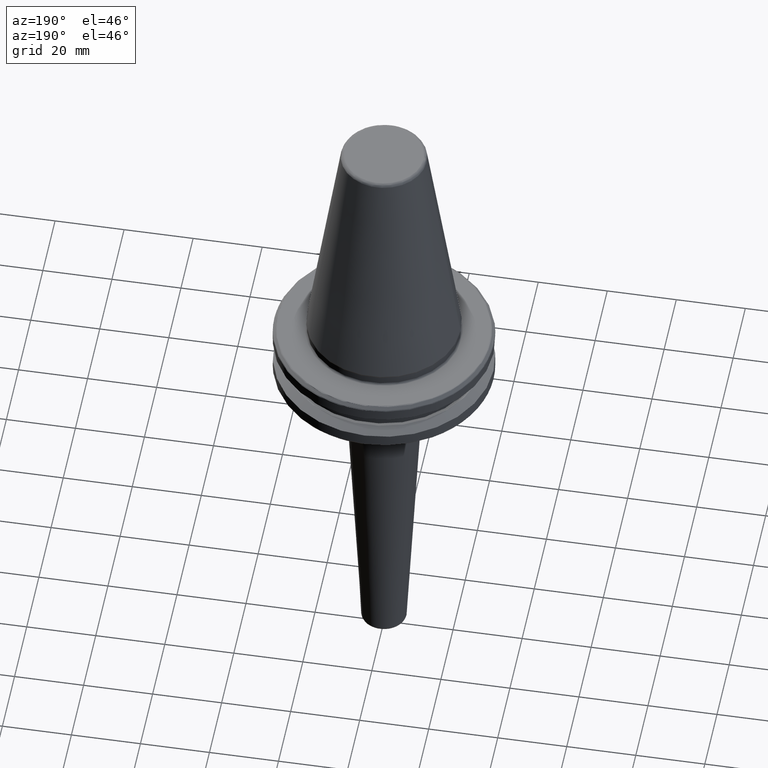
[diagram: clean part render]
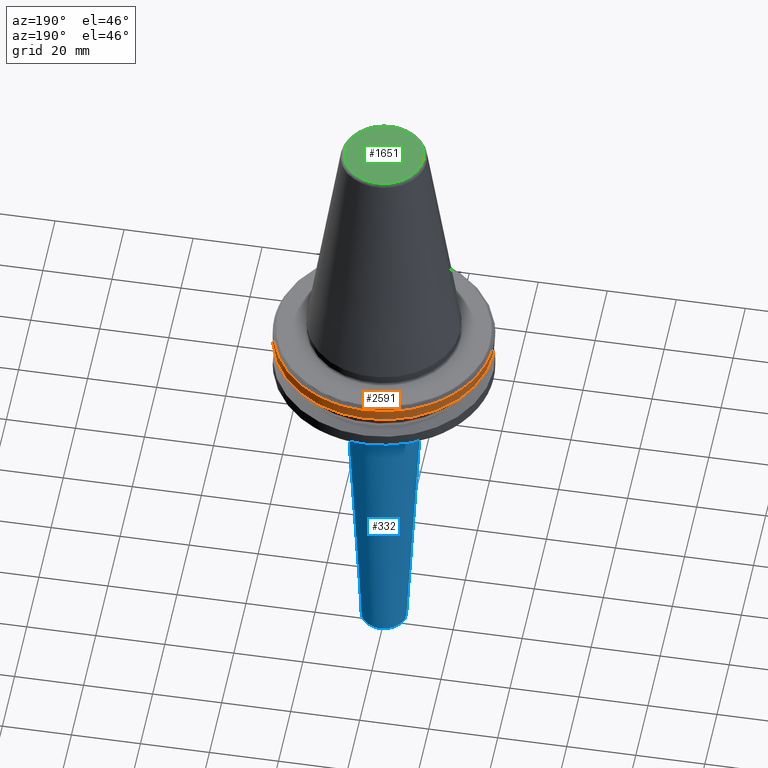
[diagram: same view with three faces highlighted in distinct colors, each labeled with its STEP entity id]
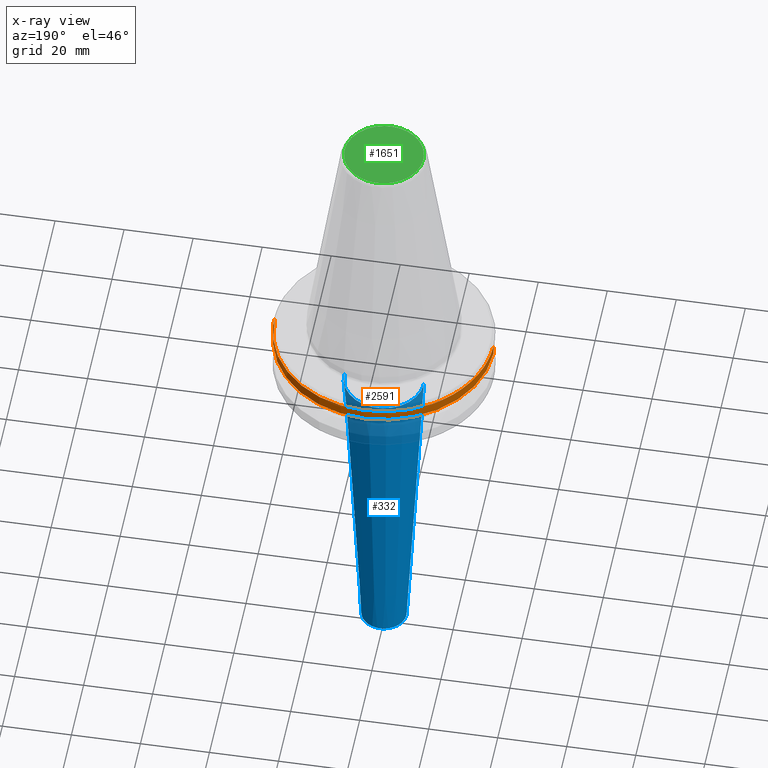
[diagram: x-ray of the same camera — body ghosted, the three highlighted faces saturated]
A machine part, auxiliary view with three faces highlighted in distinct colors.
The next image is the same camera in x-ray (body ghosted, the three faces saturated) — at least one of them is partly hidden behind the body in this view.
Their STEP definitions:

[orange] entity #2591 — the highlighted cylindrical surface (partial cylindrical patch) has radius 31.75 mm, axis along (0, 0, 1).
#9 = VERTEX_POINT ( 'NONE', #2963 ) ;
#10 = VERTEX_POINT ( 'NONE', #1822 ) ;
#21 = EDGE_CURVE ( 'NONE', #28, #2121, #1968, .T. ) ;
#28 = VERTEX_POINT ( 'NONE', #2491 ) ;
#72 = EDGE_LOOP ( 'NONE', ( #742, #350, #1885, #2292, #1268, #2521, #2339, #1210, #296 ) ) ;
#109 = CARTESIAN_POINT ( 'NONE',  ( 31.75000000000000000, 0.0000000000000000000, 113.5216080541959500 ) ) ;
#181 = AXIS2_PLACEMENT_3D ( 'NONE', #476, #2102, #718 ) ;
#221 = CARTESIAN_POINT ( 'NONE',  ( -31.75000000000000000, 3.888253587292846500E-015, -4.365685424949320200 ) ) ;
#255 = DIRECTION ( 'NONE',  ( -0.0000000000000000000, -0.0000000000000000000, -1.000000000000000000 ) ) ;
#296 = ORIENTED_EDGE ( 'NONE', *, *, #1451, .T. ) ;
#350 = ORIENTED_EDGE ( 'NONE', *, *, #447, .T. ) ;
#393 = EDGE_CURVE ( 'NONE', #759, #2121, #1958, .T. ) ;
#416 = CIRCLE ( 'NONE', #181, 31.75000000000000000 ) ;
#447 = EDGE_CURVE ( 'NONE', #2533, #2417, #482, .T. ) ;
#476 = CARTESIAN_POINT ( 'NONE',  ( 0.0000000000000000000, 0.0000000000000000000, -7.578163357943284800 ) ) ;
#482 = LINE ( 'NONE', #2483, #2898 ) ;
#512 = CARTESIAN_POINT ( 'NONE',  ( 31.75000000000000000, 0.0000000000000000000, -7.578163357943284800 ) ) ;
#577 = CYLINDRICAL_SURFACE ( 'NONE', #958, 31.75000000000000000 ) ;
#628 = DIRECTION ( 'NONE',  ( 1.000000000000000000, 0.0000000000000000000, 0.0000000000000000000 ) ) ;
#695 = DIRECTION ( 'NONE',  ( 1.000000000000000000, 0.0000000000000000000, 0.0000000000000000000 ) ) ;
#706 = AXIS2_PLACEMENT_3D ( 'NONE', #2555, #1170, #2793 ) ;
#718 = DIRECTION ( 'NONE',  ( 1.000000000000000000, 0.0000000000000000000, 0.0000000000000000000 ) ) ;
#727 = CARTESIAN_POINT ( 'NONE',  ( 0.0000000000000000000, 0.0000000000000000000, -4.365685424949320200 ) ) ;
#742 = ORIENTED_EDGE ( 'NONE', *, *, #2504, .T. ) ;
#759 = VERTEX_POINT ( 'NONE', #2711 ) ;
#925 = LINE ( 'NONE', #109, #2720 ) ;
#957 = DIRECTION ( 'NONE',  ( 1.000000000000000000, 0.0000000000000000000, 0.0000000000000000000 ) ) ;
#958 = AXIS2_PLACEMENT_3D ( 'NONE', #1872, #2097, #695 ) ;
#1165 = DIRECTION ( 'NONE',  ( 0.0000000000000000000, 0.0000000000000000000, 1.000000000000000000 ) ) ;
#1170 = DIRECTION ( 'NONE',  ( -0.0000000000000000000, -0.0000000000000000000, 1.000000000000000000 ) ) ;
#1210 = ORIENTED_EDGE ( 'NONE', *, *, #2303, .F. ) ;
#1268 = ORIENTED_EDGE ( 'NONE', *, *, #2668, .F. ) ;
#1278 = CIRCLE ( 'NONE', #1468, 31.75000000000000000 ) ;
#1317 = AXIS2_PLACEMENT_3D ( 'NONE', #2120, #2359, #2349 ) ;
#1358 = DIRECTION ( 'NONE',  ( -0.0000000000000000000, -0.0000000000000000000, 1.000000000000000000 ) ) ;
#1425 = AXIS2_PLACEMENT_3D ( 'NONE', #727, #2351, #957 ) ;
#1451 = EDGE_CURVE ( 'NONE', #2150, #2769, #416, .T. ) ;
#1468 = AXIS2_PLACEMENT_3D ( 'NONE', #2549, #1165, #2790 ) ;
#1471 = EDGE_CURVE ( 'NONE', #10, #9, #1511, .T. ) ;
#1511 = CIRCLE ( 'NONE', #2051, 31.75000000000000000 ) ;
#1653 = CARTESIAN_POINT ( 'NONE',  ( 0.0000000000000000000, 0.0000000000000000000, -4.365685424949236700 ) ) ;
#1694 = AXIS2_PLACEMENT_3D ( 'NONE', #2951, #1358, #628 ) ;
#1822 = CARTESIAN_POINT ( 'NONE',  ( -30.52966748735167000, 8.717907037342303800, -4.365685424949236700 ) ) ;
#1849 = CARTESIAN_POINT ( 'NONE',  ( 30.56296919415016300, 8.600431037885712700, -4.365685424949320200 ) ) ;
#1872 = CARTESIAN_POINT ( 'NONE',  ( 0.0000000000000000000, 0.0000000000000000000, 113.5216080541959500 ) ) ;
#1877 = CIRCLE ( 'NONE', #1425, 31.75000000000000000 ) ;
#1885 = ORIENTED_EDGE ( 'NONE', *, *, #2950, .F. ) ;
#1887 = DIRECTION ( 'NONE',  ( 1.000000000000000000, 0.0000000000000000000, 0.0000000000000000000 ) ) ;
#1958 = CIRCLE ( 'NONE', #1317, 31.75000000000000000 ) ;
#1959 = DIRECTION ( 'NONE',  ( 0.0000000000000000000, 0.0000000000000000000, 1.000000000000000000 ) ) ;
#1968 = CIRCLE ( 'NONE', #1694, 31.75000000000000000 ) ;
#2006 = CIRCLE ( 'NONE', #706, 31.75000000000000000 ) ;
#2051 = AXIS2_PLACEMENT_3D ( 'NONE', #1653, #255, #1887 ) ;
#2097 = DIRECTION ( 'NONE',  ( 0.0000000000000000000, 0.0000000000000000000, 1.000000000000000000 ) ) ;
#2102 = DIRECTION ( 'NONE',  ( 0.0000000000000000000, 0.0000000000000000000, 1.000000000000000000 ) ) ;
#2120 = CARTESIAN_POINT ( 'NONE',  ( 0.0000000000000000000, 0.0000000000000000000, -4.365685424949320200 ) ) ;
#2121 = VERTEX_POINT ( 'NONE', #1849 ) ;
#2150 = VERTEX_POINT ( 'NONE', #512 ) ;
#2292 = ORIENTED_EDGE ( 'NONE', *, *, #1471, .T. ) ;
#2303 = EDGE_CURVE ( 'NONE', #2150, #28, #925, .T. ) ;
#2339 = ORIENTED_EDGE ( 'NONE', *, *, #21, .F. ) ;
#2349 = DIRECTION ( 'NONE',  ( 1.000000000000000000, -1.776356839400250500E-015, 0.0000000000000000000 ) ) ;
#2351 = DIRECTION ( 'NONE',  ( -0.0000000000000000000, -0.0000000000000000000, 1.000000000000000000 ) ) ;
#2359 = DIRECTION ( 'NONE',  ( -0.0000000000000000000, -0.0000000000000000000, -1.000000000000000000 ) ) ;
#2417 = VERTEX_POINT ( 'NONE', #221 ) ;
#2433 = FACE_OUTER_BOUND ( 'NONE', #72, .T. ) ;
#2445 = CARTESIAN_POINT ( 'NONE',  ( 3.888253587292846500E-015, 31.75000000000000000, -7.578163357943284800 ) ) ;
#2483 = CARTESIAN_POINT ( 'NONE',  ( -31.75000000000000000, 3.888253587292846500E-015, 113.5216080541959500 ) ) ;
#2491 = CARTESIAN_POINT ( 'NONE',  ( 31.75000000000000000, 0.0000000000000000000, -4.365685424949320200 ) ) ;
#2499 = DIRECTION ( 'NONE',  ( 0.0000000000000000000, 0.0000000000000000000, 1.000000000000000000 ) ) ;
#2504 = EDGE_CURVE ( 'NONE', #2769, #2533, #1278, .T. ) ;
#2521 = ORIENTED_EDGE ( 'NONE', *, *, #393, .T. ) ;
#2533 = VERTEX_POINT ( 'NONE', #2780 ) ;
#2549 = CARTESIAN_POINT ( 'NONE',  ( 0.0000000000000000000, 0.0000000000000000000, -7.578163357943284800 ) ) ;
#2555 = CARTESIAN_POINT ( 'NONE',  ( 0.0000000000000000000, 0.0000000000000000000, -4.365685424949320200 ) ) ;
#2591 = ADVANCED_FACE ( 'NONE', ( #2433 ), #577, .T. ) ;
#2668 = EDGE_CURVE ( 'NONE', #759, #9, #1877, .T. ) ;
#2711 = CARTESIAN_POINT ( 'NONE',  ( -18.49999999999999600, 25.80334280669851700, -4.365685424949320200 ) ) ;
#2720 = VECTOR ( 'NONE', #1959, 1000.000000000000000 ) ;
#2769 = VERTEX_POINT ( 'NONE', #2445 ) ;
#2780 = CARTESIAN_POINT ( 'NONE',  ( -31.75000000000000000, 3.888253587292846500E-015, -7.578163357943284800 ) ) ;
#2790 = DIRECTION ( 'NONE',  ( 1.000000000000000000, 0.0000000000000000000, 0.0000000000000000000 ) ) ;
#2793 = DIRECTION ( 'NONE',  ( 1.000000000000000000, 0.0000000000000000000, 0.0000000000000000000 ) ) ;
#2898 = VECTOR ( 'NONE', #2499, 1000.000000000000000 ) ;
#2950 = EDGE_CURVE ( 'NONE', #10, #2417, #2006, .T. ) ;
#2951 = CARTESIAN_POINT ( 'NONE',  ( 0.0000000000000000000, 0.0000000000000000000, -4.365685424949320200 ) ) ;
#2963 = CARTESIAN_POINT ( 'NONE',  ( -25.80334280669851700, 18.50000000000000000, -4.365685424949320200 ) ) ;

[blue] entity #332 — the highlighted conical surface has half-angle 3 deg.
#15 = LINE ( 'NONE', #2543, #2345 ) ;
#138 = CIRCLE ( 'NONE', #1617, 11.53962008945974900 ) ;
#148 = DIRECTION ( 'NONE',  ( 0.0000000000000000000, 0.0000000000000000000, -1.000000000000000000 ) ) ;
#332 = ADVANCED_FACE ( 'NONE', ( #1811 ), #2961, .T. ) ;
#381 = CARTESIAN_POINT ( 'NONE',  ( 11.53962008945974900, 0.0000000000000000000, -23.83832021878531600 ) ) ;
#475 = EDGE_LOOP ( 'NONE', ( #2594, #2049, #643, #3001 ) ) ;
#478 = VECTOR ( 'NONE', #1080, 1000.000000000000100 ) ;
#513 = VERTEX_POINT ( 'NONE', #1237 ) ;
#643 = ORIENTED_EDGE ( 'NONE', *, *, #1682, .T. ) ;
#749 = DIRECTION ( 'NONE',  ( 0.0000000000000000000, -0.0000000000000000000, 1.000000000000000000 ) ) ;
#942 = CARTESIAN_POINT ( 'NONE',  ( 6.524832484019843700, 0.0000000000000000000, -119.5261679781214800 ) ) ;
#1065 = VERTEX_POINT ( 'NONE', #2315 ) ;
#1080 = DIRECTION ( 'NONE',  ( 0.05233595624293725000, 0.0000000000000000000, 0.9986295347545742800 ) ) ;
#1174 = LINE ( 'NONE', #381, #478 ) ;
#1223 = EDGE_CURVE ( 'NONE', #1472, #513, #2490, .T. ) ;
#1237 = CARTESIAN_POINT ( 'NONE',  ( -6.524832484019843700, 1.106128701123047600E-015, -119.5261679781214800 ) ) ;
#1342 = CARTESIAN_POINT ( 'NONE',  ( 0.0000000000000000000, 0.0000000000000000000, -119.5261679781214800 ) ) ;
#1352 = EDGE_CURVE ( 'NONE', #1472, #1065, #1174, .T. ) ;
#1472 = VERTEX_POINT ( 'NONE', #942 ) ;
#1530 = CARTESIAN_POINT ( 'NONE',  ( 0.0000000000000000000, 0.0000000000000000000, -23.83832021878532400 ) ) ;
#1571 = DIRECTION ( 'NONE',  ( 1.000000000000000000, 0.0000000000000000000, 0.0000000000000000000 ) ) ;
#1617 = AXIS2_PLACEMENT_3D ( 'NONE', #1530, #148, #1770 ) ;
#1682 = EDGE_CURVE ( 'NONE', #1936, #1065, #138, .T. ) ;
#1770 = DIRECTION ( 'NONE',  ( -1.000000000000000000, 0.0000000000000000000, 0.0000000000000000000 ) ) ;
#1811 = FACE_OUTER_BOUND ( 'NONE', #475, .T. ) ;
#1936 = VERTEX_POINT ( 'NONE', #1940 ) ;
#1940 = CARTESIAN_POINT ( 'NONE',  ( -11.53962008945974900, 1.413195880593337500E-015, -23.83832021878532400 ) ) ;
#2049 = ORIENTED_EDGE ( 'NONE', *, *, #2615, .T. ) ;
#2315 = CARTESIAN_POINT ( 'NONE',  ( 11.53962008945974900, 0.0000000000000000000, -23.83832021878532400 ) ) ;
#2345 = VECTOR ( 'NONE', #2785, 1000.000000000000100 ) ;
#2490 = CIRCLE ( 'NONE', #2686, 6.524832484019843700 ) ;
#2494 = AXIS2_PLACEMENT_3D ( 'NONE', #2588, #749, #2844 ) ;
#2543 = CARTESIAN_POINT ( 'NONE',  ( -11.53962008945974900, 1.413195880593337500E-015, -23.83832021878531600 ) ) ;
#2588 = CARTESIAN_POINT ( 'NONE',  ( 0.0000000000000000000, 0.0000000000000000000, -23.83832021878531600 ) ) ;
#2594 = ORIENTED_EDGE ( 'NONE', *, *, #1223, .T. ) ;
#2615 = EDGE_CURVE ( 'NONE', #513, #1936, #15, .T. ) ;
#2686 = AXIS2_PLACEMENT_3D ( 'NONE', #1342, #2954, #1571 ) ;
#2785 = DIRECTION ( 'NONE',  ( -0.05233595624293725000, 6.409306129322903600E-018, 0.9986295347545742800 ) ) ;
#2844 = DIRECTION ( 'NONE',  ( 1.000000000000000000, 0.0000000000000000000, 0.0000000000000000000 ) ) ;
#2954 = DIRECTION ( 'NONE',  ( 0.0000000000000000000, 0.0000000000000000000, 1.000000000000000000 ) ) ;
#2961 = CONICAL_SURFACE ( 'NONE', #2494, 11.53962008945974900, 0.05235987755982329100 ) ;
#3001 = ORIENTED_EDGE ( 'NONE', *, *, #1352, .F. ) ;

[green] entity #1651 — the highlighted planar face has unit normal (0, 0, 1).
#1 = EDGE_CURVE ( 'NONE', #631, #1361, #20, .T. ) ;
#20 =( BOUNDED_CURVE ( )  B_SPLINE_CURVE ( 3, ( #637, #1544, #1577, #160 ),
 .UNSPECIFIED., .F., .F. ) 
 B_SPLINE_CURVE_WITH_KNOTS ( ( 4, 4 ),
 ( 0.0000000000000000000, 1.000000000000000000 ),
 .UNSPECIFIED. ) 
 CURVE ( )  GEOMETRIC_REPRESENTATION_ITEM ( )  RATIONAL_B_SPLINE_CURVE ( ( 1.000000000000000000, 0.3333333333333333700, 0.3333333333333333700, 1.000000000000000000 ) ) 
 REPRESENTATION_ITEM ( '' )  );
#87 = CARTESIAN_POINT ( 'NONE',  ( -11.38516258961893100, 1.418516855507481500E-015, 68.39999999999999100 ) ) ;
#88 = AXIS2_PLACEMENT_3D ( 'NONE', #1975, #2197, #808 ) ;
#160 = CARTESIAN_POINT ( 'NONE',  ( -11.38516258961893100, 1.418516855507481500E-015, 68.39999999999999100 ) ) ;
#337 = EDGE_LOOP ( 'NONE', ( #1105, #902 ) ) ;
#448 =( BOUNDED_CURVE ( )  B_SPLINE_CURVE ( 3, ( #87, #1704, #550, #2179 ),
 .UNSPECIFIED., .F., .T. ) 
 B_SPLINE_CURVE_WITH_KNOTS ( ( 4, 4 ),
 ( 0.0000000000000000000, 1.000000000000000000 ),
 .UNSPECIFIED. ) 
 CURVE ( )  GEOMETRIC_REPRESENTATION_ITEM ( )  RATIONAL_B_SPLINE_CURVE ( ( 1.000000000000000000, 0.3333333333333333700, 0.3333333333333333700, 1.000000000000000000 ) ) 
 REPRESENTATION_ITEM ( '' )  );
#550 = CARTESIAN_POINT ( 'NONE',  ( 11.38516258961893100, 22.77032517923785800, 68.39999999999999100 ) ) ;
#631 = VERTEX_POINT ( 'NONE', #1292 ) ;
#637 = CARTESIAN_POINT ( 'NONE',  ( 11.38516258961893100, 0.0000000000000000000, 68.39999999999999100 ) ) ;
#808 = DIRECTION ( 'NONE',  ( 1.000000000000000000, 0.0000000000000000000, -0.0000000000000000000 ) ) ;
#902 = ORIENTED_EDGE ( 'NONE', *, *, #1, .F. ) ;
#1105 = ORIENTED_EDGE ( 'NONE', *, *, #1945, .F. ) ;
#1292 = CARTESIAN_POINT ( 'NONE',  ( 11.38516258961893100, 0.0000000000000000000, 68.39999999999999100 ) ) ;
#1361 = VERTEX_POINT ( 'NONE', #2936 ) ;
#1544 = CARTESIAN_POINT ( 'NONE',  ( 11.38516258961893100, -22.77032517923785800, 68.39999999999999100 ) ) ;
#1577 = CARTESIAN_POINT ( 'NONE',  ( -11.38516258961893400, -22.77032517923785800, 68.39999999999999100 ) ) ;
#1651 = ADVANCED_FACE ( 'NONE', ( #1996 ), #2423, .T. ) ;
#1704 = CARTESIAN_POINT ( 'NONE',  ( -11.38516258961892700, 22.77032517923785800, 68.39999999999999100 ) ) ;
#1945 = EDGE_CURVE ( 'NONE', #1361, #631, #448, .T. ) ;
#1975 = CARTESIAN_POINT ( 'NONE',  ( 0.0000000000000000000, -8.337524199435086500E-014, 68.39999999999999100 ) ) ;
#1996 = FACE_OUTER_BOUND ( 'NONE', #337, .T. ) ;
#2179 = CARTESIAN_POINT ( 'NONE',  ( 11.38516258961893100, 0.0000000000000000000, 68.39999999999999100 ) ) ;
#2197 = DIRECTION ( 'NONE',  ( 0.0000000000000000000, 0.0000000000000000000, 1.000000000000000000 ) ) ;
#2423 = PLANE ( 'NONE',  #88 ) ;
#2936 = CARTESIAN_POINT ( 'NONE',  ( -11.38516258961893100, 1.418516855507481500E-015, 68.39999999999999100 ) ) ;